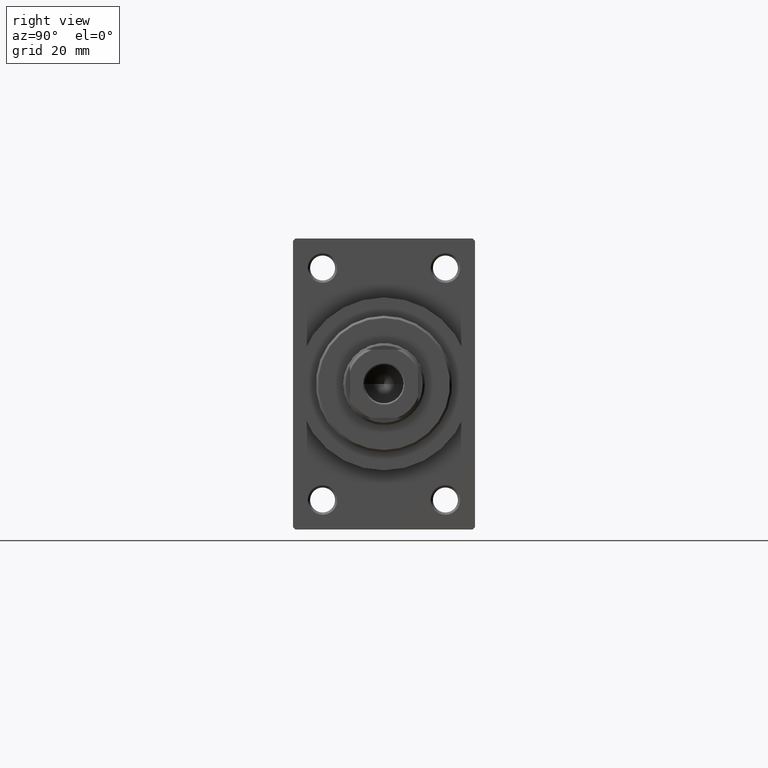
[diagram: clean part render]
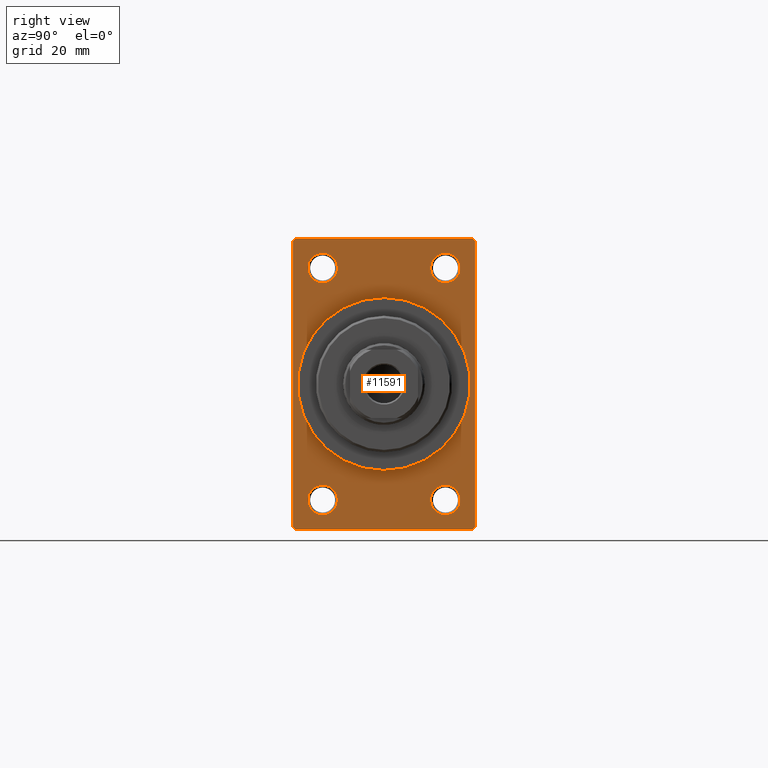
[diagram: same view with one face highlighted and labeled with its STEP entity id]
A machine part, right view. The second image highlights one B-rep face of the part: STEP entity #11591.
In plain terms, the highlighted planar face has unit normal (-1, 0, 0).
Its self-contained STEP definition (entity closure, byte-faithful):
#442 = EDGE_LOOP ( 'NONE', ( #16685, #43459 ) ) ;
#524 = EDGE_CURVE ( 'NONE', #9708, #10233, #782, .T. ) ;
#637 = VERTEX_POINT ( 'NONE', #45757 ) ;
#698 = VECTOR ( 'NONE', #34021, 1000.000000000000000 ) ;
#779 = DIRECTION ( 'NONE',  ( 0.000000000000000000, 0.7071067811865426878, -0.7071067811865524577 ) ) ;
#782 = CIRCLE ( 'NONE', #36480, 3.250000000000002665 ) ;
#970 = DIRECTION ( 'NONE',  ( -1.000000000000000000, -0.000000000000000000, -0.000000000000000000 ) ) ;
#1226 = CIRCLE ( 'NONE', #20953, 3.249999999999961364 ) ;
#1702 = LINE ( 'NONE', #2403, #6430 ) ;
#1999 = CARTESIAN_POINT ( 'NONE',  ( 109.0000000000000142, 0.000000000000000000, 0.000000000000000000 ) ) ;
#2320 = DIRECTION ( 'NONE',  ( 0.000000000000000000, -1.000000000000000000, 0.000000000000000000 ) ) ;
#2403 = CARTESIAN_POINT ( 'NONE',  ( 109.0000000000000142, 20.00000000000000000, 32.00000000000000000 ) ) ;
#2712 = CARTESIAN_POINT ( 'NONE',  ( 109.0000000000000142, -19.49999999999998579, -32.00000000000000000 ) ) ;
#3341 = DIRECTION ( 'NONE',  ( 0.000000000000000000, 0.000000000000000000, -1.000000000000000000 ) ) ;
#3714 = DIRECTION ( 'NONE',  ( -0.000000000000000000, -0.7071067811865474617, -0.7071067811865474617 ) ) ;
#4029 = DIRECTION ( 'NONE',  ( -1.000000000000000000, -0.000000000000000000, -0.000000000000000000 ) ) ;
#4119 = DIRECTION ( 'NONE',  ( 0.000000000000000000, -0.7071067811865474617, 0.7071067811865474617 ) ) ;
#4633 = FACE_BOUND ( 'NONE', #41092, .T. ) ;
#4784 = VERTEX_POINT ( 'NONE', #17336 ) ;
#5455 = DIRECTION ( 'NONE',  ( 0.000000000000000000, 0.000000000000000000, 1.000000000000000000 ) ) ;
#5996 = EDGE_LOOP ( 'NONE', ( #20258, #43698, #26464, #18583, #23490, #33350, #45448, #31176 ) ) ;
#6430 = VECTOR ( 'NONE', #31197, 1000.000000000000000 ) ;
#6890 = EDGE_CURVE ( 'NONE', #19733, #20231, #21918, .T. ) ;
#6929 = CARTESIAN_POINT ( 'NONE',  ( 109.0000000000000142, 20.00000000000000000, 32.00000000000000000 ) ) ;
#7809 = CARTESIAN_POINT ( 'NONE',  ( 109.0000000000000142, 13.49999999999999822, 22.25000000000004263 ) ) ;
#7849 = CARTESIAN_POINT ( 'NONE',  ( 109.0000000000000142, -13.50000000000000533, -25.49999999999999645 ) ) ;
#8223 = CARTESIAN_POINT ( 'NONE',  ( 109.0000000000000142, 13.49999999999999822, 28.74999999999996803 ) ) ;
#8601 = AXIS2_PLACEMENT_3D ( 'NONE', #11780, #26752, #37467 ) ;
#8752 = EDGE_CURVE ( 'NONE', #45206, #637, #15352, .T. ) ;
#9041 = CARTESIAN_POINT ( 'NONE',  ( 109.0000000000000142, 0.000000000000000000, 0.000000000000000000 ) ) ;
#9145 = DIRECTION ( 'NONE',  ( 0.000000000000000000, 0.000000000000000000, -1.000000000000000000 ) ) ;
#9199 = EDGE_CURVE ( 'NONE', #4784, #20231, #35943, .T. ) ;
#9402 = DIRECTION ( 'NONE',  ( 0.000000000000000000, 0.000000000000000000, 1.000000000000000000 ) ) ;
#9599 = AXIS2_PLACEMENT_3D ( 'NONE', #12802, #30887, #18976 ) ;
#9708 = VERTEX_POINT ( 'NONE', #36012 ) ;
#9934 = CIRCLE ( 'NONE', #46386, 19.00000000000000000 ) ;
#10233 = VERTEX_POINT ( 'NONE', #11118 ) ;
#10301 = AXIS2_PLACEMENT_3D ( 'NONE', #45541, #37720, #9402 ) ;
#10799 = CARTESIAN_POINT ( 'NONE',  ( 109.0000000000000142, 19.49999999999998579, 32.00000000000000000 ) ) ;
#11118 = CARTESIAN_POINT ( 'NONE',  ( 109.0000000000000142, 13.49999999999999822, -28.75000000000000000 ) ) ;
#11259 = LINE ( 'NONE', #10799, #20594 ) ;
#11413 = DIRECTION ( 'NONE',  ( -1.000000000000000000, -0.000000000000000000, -0.000000000000000000 ) ) ;
#11433 = CIRCLE ( 'NONE', #24330, 3.250000000000002665 ) ;
#11591 = ADVANCED_FACE ( 'NONE', ( #25801, #22709, #44599, #30313, #4633, #15338 ), #18663, .F. ) ;
#11780 = CARTESIAN_POINT ( 'NONE',  ( 109.0000000000000142, 0.000000000000000000, 0.000000000000000000 ) ) ;
#11808 = VERTEX_POINT ( 'NONE', #46451 ) ;
#12527 = CIRCLE ( 'NONE', #26200, 3.250000000000002665 ) ;
#12802 = CARTESIAN_POINT ( 'NONE',  ( 109.0000000000000142, -13.50000000000000178, 25.50000000000000355 ) ) ;
#13676 = ORIENTED_EDGE ( 'NONE', *, *, #41391, .T. ) ;
#14088 = DIRECTION ( 'NONE',  ( -0.000000000000000000, 0.7071067811865474617, 0.7071067811865474617 ) ) ;
#14626 = EDGE_CURVE ( 'NONE', #11808, #38214, #1702, .T. ) ;
#14664 = CARTESIAN_POINT ( 'NONE',  ( 109.0000000000000142, -20.00000000000000000, 31.49999999999997868 ) ) ;
#15338 = FACE_OUTER_BOUND ( 'NONE', #5996, .T. ) ;
#15352 = CIRCLE ( 'NONE', #37360, 19.00000000000000000 ) ;
#16634 = CARTESIAN_POINT ( 'NONE',  ( 109.0000000000000142, -20.00000000000000000, 31.99999999999999289 ) ) ;
#16635 = DIRECTION ( 'NONE',  ( 1.000000000000000000, 0.000000000000000000, 0.000000000000000000 ) ) ;
#16685 = ORIENTED_EDGE ( 'NONE', *, *, #43101, .T. ) ;
#16708 = DIRECTION ( 'NONE',  ( 0.000000000000000000, 0.000000000000000000, 1.000000000000000000 ) ) ;
#17128 = VERTEX_POINT ( 'NONE', #8223 ) ;
#17336 = CARTESIAN_POINT ( 'NONE',  ( 109.0000000000000142, 20.00000000000000000, 31.49999999999998579 ) ) ;
#17871 = EDGE_CURVE ( 'NONE', #44419, #31635, #34500, .T. ) ;
#18118 = ORIENTED_EDGE ( 'NONE', *, *, #524, .T. ) ;
#18583 = ORIENTED_EDGE ( 'NONE', *, *, #6890, .T. ) ;
#18663 = PLANE ( 'NONE',  #8601 ) ;
#18761 = DIRECTION ( 'NONE',  ( 0.000000000000000000, 0.000000000000000000, 1.000000000000000000 ) ) ;
#18848 = LINE ( 'NONE', #43855, #28088 ) ;
#18976 = DIRECTION ( 'NONE',  ( 0.000000000000000000, 0.000000000000000000, 1.000000000000000000 ) ) ;
#19417 = EDGE_CURVE ( 'NONE', #39785, #34031, #27328, .T. ) ;
#19501 = CARTESIAN_POINT ( 'NONE',  ( 109.0000000000000142, 13.49999999999999822, -25.50000000000000000 ) ) ;
#19733 = VERTEX_POINT ( 'NONE', #19813 ) ;
#19813 = CARTESIAN_POINT ( 'NONE',  ( 109.0000000000000142, 19.49999999999998579, -32.00000000000000000 ) ) ;
#20185 = DIRECTION ( 'NONE',  ( -1.000000000000000000, -0.000000000000000000, -0.000000000000000000 ) ) ;
#20231 = VERTEX_POINT ( 'NONE', #32355 ) ;
#20258 = ORIENTED_EDGE ( 'NONE', *, *, #17871, .T. ) ;
#20391 = LINE ( 'NONE', #28001, #38265 ) ;
#20594 = VECTOR ( 'NONE', #4119, 1000.000000000000114 ) ;
#20953 = AXIS2_PLACEMENT_3D ( 'NONE', #45733, #22919, #16708 ) ;
#21690 = CARTESIAN_POINT ( 'NONE',  ( 109.0000000000000142, -20.00000000000000000, -31.49999999999997868 ) ) ;
#21700 = EDGE_CURVE ( 'NONE', #46244, #43711, #11433, .T. ) ;
#21735 = EDGE_CURVE ( 'NONE', #17128, #44076, #41856, .T. ) ;
#21918 = LINE ( 'NONE', #46434, #43549 ) ;
#22709 = FACE_BOUND ( 'NONE', #22857, .T. ) ;
#22857 = EDGE_LOOP ( 'NONE', ( #33144, #13676 ) ) ;
#22858 = DIRECTION ( 'NONE',  ( 0.000000000000000000, 0.000000000000000000, 1.000000000000000000 ) ) ;
#22919 = DIRECTION ( 'NONE',  ( -1.000000000000000000, -0.000000000000000000, -0.000000000000000000 ) ) ;
#23475 = EDGE_CURVE ( 'NONE', #31635, #40059, #18848, .T. ) ;
#23490 = ORIENTED_EDGE ( 'NONE', *, *, #9199, .F. ) ;
#23493 = EDGE_CURVE ( 'NONE', #4784, #11808, #11259, .T. ) ;
#23603 = ORIENTED_EDGE ( 'NONE', *, *, #42460, .T. ) ;
#24330 = AXIS2_PLACEMENT_3D ( 'NONE', #44002, #11413, #25920 ) ;
#25332 = ORIENTED_EDGE ( 'NONE', *, *, #21735, .T. ) ;
#25479 = CIRCLE ( 'NONE', #10301, 3.250000000000002665 ) ;
#25801 = FACE_BOUND ( 'NONE', #442, .T. ) ;
#25920 = DIRECTION ( 'NONE',  ( 0.000000000000000000, 0.000000000000000000, 1.000000000000000000 ) ) ;
#25946 = EDGE_LOOP ( 'NONE', ( #23603, #25332 ) ) ;
#26200 = AXIS2_PLACEMENT_3D ( 'NONE', #19501, #970, #22858 ) ;
#26299 = CIRCLE ( 'NONE', #9599, 3.250000000000002665 ) ;
#26464 = ORIENTED_EDGE ( 'NONE', *, *, #32114, .F. ) ;
#26748 = CARTESIAN_POINT ( 'NONE',  ( 109.0000000000000142, 13.49999999999999822, -25.50000000000000000 ) ) ;
#26752 = DIRECTION ( 'NONE',  ( -1.000000000000000000, 0.000000000000000000, -0.000000000000000000 ) ) ;
#27065 = CARTESIAN_POINT ( 'NONE',  ( 109.0000000000000142, -13.50000000000000178, 28.75000000000000355 ) ) ;
#27101 = CARTESIAN_POINT ( 'NONE',  ( 109.0000000000000142, 13.49999999999999822, 25.50000000000000355 ) ) ;
#27328 = CIRCLE ( 'NONE', #46296, 3.250000000000002665 ) ;
#27417 = EDGE_LOOP ( 'NONE', ( #36683, #18118 ) ) ;
#28001 = CARTESIAN_POINT ( 'NONE',  ( 109.0000000000000142, 20.00000000000000000, -32.00000000000000000 ) ) ;
#28088 = VECTOR ( 'NONE', #779, 1000.000000000000000 ) ;
#30313 = FACE_BOUND ( 'NONE', #25946, .T. ) ;
#30410 = AXIS2_PLACEMENT_3D ( 'NONE', #27101, #20185, #5455 ) ;
#30887 = DIRECTION ( 'NONE',  ( -1.000000000000000000, -0.000000000000000000, -0.000000000000000000 ) ) ;
#30935 = EDGE_CURVE ( 'NONE', #38214, #44419, #41080, .T. ) ;
#30946 = CARTESIAN_POINT ( 'NONE',  ( 109.0000000000000142, -13.50000000000000178, 22.25000000000000000 ) ) ;
#31176 = ORIENTED_EDGE ( 'NONE', *, *, #30935, .T. ) ;
#31197 = DIRECTION ( 'NONE',  ( 0.000000000000000000, -1.000000000000000000, -1.734723475976807094E-16 ) ) ;
#31635 = VERTEX_POINT ( 'NONE', #21690 ) ;
#32114 = EDGE_CURVE ( 'NONE', #19733, #40059, #20391, .T. ) ;
#32355 = CARTESIAN_POINT ( 'NONE',  ( 109.0000000000000142, 20.00000000000000000, -31.49999999999998579 ) ) ;
#33144 = ORIENTED_EDGE ( 'NONE', *, *, #19417, .T. ) ;
#33205 = CARTESIAN_POINT ( 'NONE',  ( 109.0000000000000142, 2.326828918379970970E-15, -19.00000000000000000 ) ) ;
#33350 = ORIENTED_EDGE ( 'NONE', *, *, #23493, .T. ) ;
#34021 = DIRECTION ( 'NONE',  ( 0.000000000000000000, 0.000000000000000000, -1.000000000000000000 ) ) ;
#34031 = VERTEX_POINT ( 'NONE', #45483 ) ;
#34500 = LINE ( 'NONE', #16634, #698 ) ;
#34501 = DIRECTION ( 'NONE',  ( 0.000000000000000000, 0.000000000000000000, -1.000000000000000000 ) ) ;
#34556 = ORIENTED_EDGE ( 'NONE', *, *, #45923, .F. ) ;
#34822 = DIRECTION ( 'NONE',  ( 0.000000000000000000, 0.000000000000000000, 1.000000000000000000 ) ) ;
#35746 = EDGE_CURVE ( 'NONE', #10233, #9708, #12527, .T. ) ;
#35943 = LINE ( 'NONE', #6929, #46508 ) ;
#36012 = CARTESIAN_POINT ( 'NONE',  ( 109.0000000000000142, 13.49999999999999822, -22.24999999999999645 ) ) ;
#36480 = AXIS2_PLACEMENT_3D ( 'NONE', #26748, #37463, #34822 ) ;
#36683 = ORIENTED_EDGE ( 'NONE', *, *, #35746, .T. ) ;
#37226 = CARTESIAN_POINT ( 'NONE',  ( 109.0000000000000142, -20.00000000000000000, 31.49999999999997868 ) ) ;
#37360 = AXIS2_PLACEMENT_3D ( 'NONE', #1999, #45996, #9145 ) ;
#37463 = DIRECTION ( 'NONE',  ( -1.000000000000000000, -0.000000000000000000, -0.000000000000000000 ) ) ;
#37467 = DIRECTION ( 'NONE',  ( -0.000000000000000000, 0.000000000000000000, 1.000000000000000000 ) ) ;
#37720 = DIRECTION ( 'NONE',  ( -1.000000000000000000, -0.000000000000000000, -0.000000000000000000 ) ) ;
#38214 = VERTEX_POINT ( 'NONE', #41047 ) ;
#38265 = VECTOR ( 'NONE', #2320, 1000.000000000000000 ) ;
#39785 = VERTEX_POINT ( 'NONE', #46120 ) ;
#39902 = ORIENTED_EDGE ( 'NONE', *, *, #8752, .F. ) ;
#40059 = VERTEX_POINT ( 'NONE', #2712 ) ;
#41047 = CARTESIAN_POINT ( 'NONE',  ( 109.0000000000000142, -19.49999999999998579, 31.99999999999999289 ) ) ;
#41080 = LINE ( 'NONE', #14664, #41240 ) ;
#41092 = EDGE_LOOP ( 'NONE', ( #34556, #39902 ) ) ;
#41240 = VECTOR ( 'NONE', #3714, 1000.000000000000114 ) ;
#41391 = EDGE_CURVE ( 'NONE', #34031, #39785, #25479, .T. ) ;
#41856 = CIRCLE ( 'NONE', #30410, 3.249999999999961364 ) ;
#42460 = EDGE_CURVE ( 'NONE', #44076, #17128, #1226, .T. ) ;
#43101 = EDGE_CURVE ( 'NONE', #43711, #46244, #26299, .T. ) ;
#43459 = ORIENTED_EDGE ( 'NONE', *, *, #21700, .T. ) ;
#43549 = VECTOR ( 'NONE', #14088, 1000.000000000000114 ) ;
#43698 = ORIENTED_EDGE ( 'NONE', *, *, #23475, .T. ) ;
#43711 = VERTEX_POINT ( 'NONE', #30946 ) ;
#43855 = CARTESIAN_POINT ( 'NONE',  ( 109.0000000000000142, -19.49999999999998579, -32.00000000000000000 ) ) ;
#44002 = CARTESIAN_POINT ( 'NONE',  ( 109.0000000000000142, -13.50000000000000178, 25.50000000000000355 ) ) ;
#44076 = VERTEX_POINT ( 'NONE', #7809 ) ;
#44419 = VERTEX_POINT ( 'NONE', #37226 ) ;
#44599 = FACE_BOUND ( 'NONE', #27417, .T. ) ;
#45206 = VERTEX_POINT ( 'NONE', #33205 ) ;
#45448 = ORIENTED_EDGE ( 'NONE', *, *, #14626, .T. ) ;
#45483 = CARTESIAN_POINT ( 'NONE',  ( 109.0000000000000142, -13.50000000000000533, -22.24999999999999289 ) ) ;
#45541 = CARTESIAN_POINT ( 'NONE',  ( 109.0000000000000142, -13.50000000000000533, -25.49999999999999645 ) ) ;
#45733 = CARTESIAN_POINT ( 'NONE',  ( 109.0000000000000142, 13.49999999999999822, 25.50000000000000355 ) ) ;
#45757 = CARTESIAN_POINT ( 'NONE',  ( 109.0000000000000142, 0.000000000000000000, 19.00000000000000000 ) ) ;
#45923 = EDGE_CURVE ( 'NONE', #637, #45206, #9934, .T. ) ;
#45996 = DIRECTION ( 'NONE',  ( 1.000000000000000000, 0.000000000000000000, 0.000000000000000000 ) ) ;
#46120 = CARTESIAN_POINT ( 'NONE',  ( 109.0000000000000142, -13.50000000000000533, -28.74999999999999645 ) ) ;
#46244 = VERTEX_POINT ( 'NONE', #27065 ) ;
#46296 = AXIS2_PLACEMENT_3D ( 'NONE', #7849, #4029, #18761 ) ;
#46386 = AXIS2_PLACEMENT_3D ( 'NONE', #9041, #16635, #34501 ) ;
#46434 = CARTESIAN_POINT ( 'NONE',  ( 109.0000000000000142, 20.00000000000000000, -31.49999999999998579 ) ) ;
#46451 = CARTESIAN_POINT ( 'NONE',  ( 109.0000000000000142, 19.49999999999998579, 32.00000000000000000 ) ) ;
#46508 = VECTOR ( 'NONE', #3341, 1000.000000000000000 ) ;